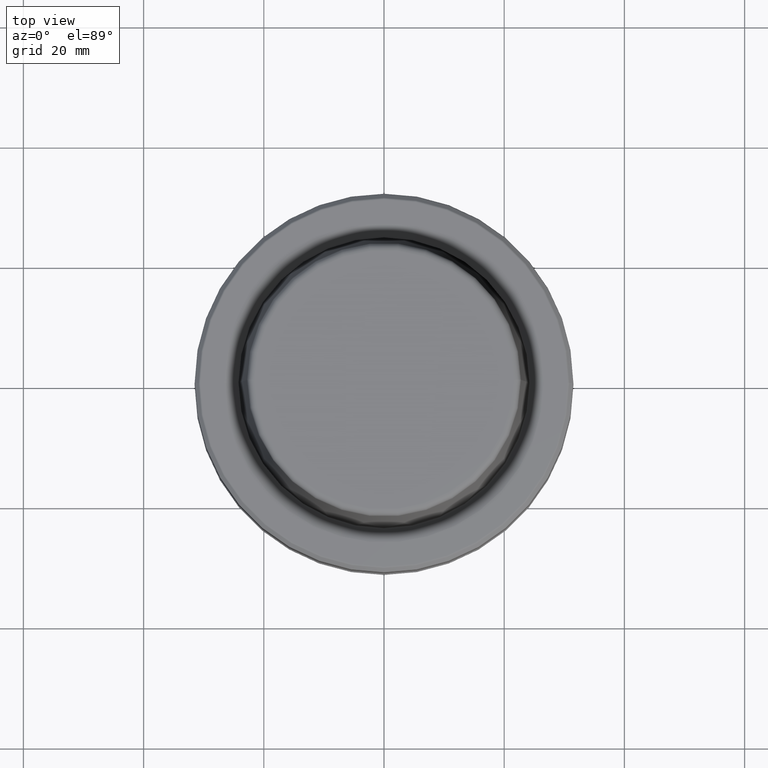
[diagram: clean part render]
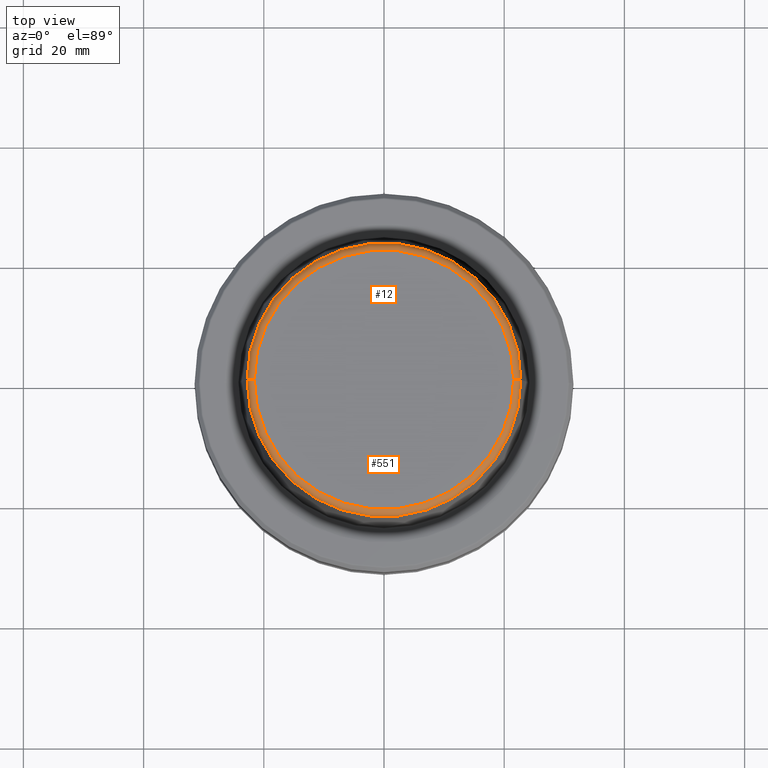
[diagram: same view with one multi-face feature highlighted, each face labeled with its STEP entity id]
A machine part, top view. The highlighted faces form ONE feature: a constant-radius fillet chain: 2 tangent blend faces with common blend radius 1.2 mm. The faces share edges in the B-rep.
Their STEP definitions:
[1] entity #12 (Torus):
#12 = ADVANCED_FACE ( 'NONE', ( #96 ), #1248, .T. ) ;
#21 = CARTESIAN_POINT ( 'NONE',  ( 21.58108272732117100, 0.0000000000000000000, 30.69999999999999200 ) ) ;
#66 = VERTEX_POINT ( 'NONE', #593 ) ;
#88 = DIRECTION ( 'NONE',  ( 1.000000000000000000, 0.0000000000000000000, 0.0000000000000000000 ) ) ;
#96 = FACE_OUTER_BOUND ( 'NONE', #1168, .T. ) ;
#144 = DIRECTION ( 'NONE',  ( 1.000000000000000000, 0.0000000000000000000, 0.0000000000000000000 ) ) ;
#158 = CARTESIAN_POINT ( 'NONE',  ( -22.77957961851797100, 0.0000000000000000000, 30.76004333261571900 ) ) ;
#238 = EDGE_CURVE ( 'NONE', #728, #66, #1014, .T. ) ;
#258 = ORIENTED_EDGE ( 'NONE', *, *, #238, .F. ) ;
#291 = ORIENTED_EDGE ( 'NONE', *, *, #312, .F. ) ;
#302 = AXIS2_PLACEMENT_3D ( 'NONE', #431, #321, #88 ) ;
#312 = EDGE_CURVE ( 'NONE', #1223, #728, #337, .T. ) ;
#315 = ORIENTED_EDGE ( 'NONE', *, *, #795, .T. ) ;
#321 = DIRECTION ( 'NONE',  ( -0.0000000000000000000, -0.0000000000000000000, 1.000000000000000000 ) ) ;
#330 = DIRECTION ( 'NONE',  ( 1.000000000000000000, 0.0000000000000000000, 0.0000000000000000000 ) ) ;
#337 = CIRCLE ( 'NONE', #828, 1.200000000000003100 ) ;
#427 = AXIS2_PLACEMENT_3D ( 'NONE', #1003, #810, #897 ) ;
#431 = CARTESIAN_POINT ( 'NONE',  ( 0.0000000000000000000, 0.0000000000000000000, 30.69999999999999200 ) ) ;
#495 = CARTESIAN_POINT ( 'NONE',  ( 22.77957961851797100, 2.876386432489616700E-015, 30.76004333261571900 ) ) ;
#538 = CARTESIAN_POINT ( 'NONE',  ( 21.58108272732117100, 0.0000000000000000000, 31.89999999999999900 ) ) ;
#547 = DIRECTION ( 'NONE',  ( 0.0000000000000000000, 0.0000000000000000000, -1.000000000000000000 ) ) ;
#593 = CARTESIAN_POINT ( 'NONE',  ( -21.58108272732117100, 2.716307157494421400E-015, 31.89999999999999900 ) ) ;
#667 = EDGE_CURVE ( 'NONE', #1223, #919, #698, .T. ) ;
#698 = CIRCLE ( 'NONE', #901, 22.77957961851797100 ) ;
#728 = VERTEX_POINT ( 'NONE', #538 ) ;
#795 = EDGE_CURVE ( 'NONE', #919, #66, #1140, .T. ) ;
#810 = DIRECTION ( 'NONE',  ( 1.224646799147353200E-016, 1.000000000000000000, 0.0000000000000000000 ) ) ;
#815 = CARTESIAN_POINT ( 'NONE',  ( 0.0000000000000000000, 0.0000000000000000000, 30.76004333261571900 ) ) ;
#827 = DIRECTION ( 'NONE',  ( -0.0000000000000000000, -0.0000000000000000000, 1.000000000000000000 ) ) ;
#828 = AXIS2_PLACEMENT_3D ( 'NONE', #21, #1240, #547 ) ;
#888 = ORIENTED_EDGE ( 'NONE', *, *, #667, .T. ) ;
#897 = DIRECTION ( 'NONE',  ( -1.000000000000000000, 1.224646799147353200E-016, 0.0000000000000000000 ) ) ;
#901 = AXIS2_PLACEMENT_3D ( 'NONE', #815, #827, #330 ) ;
#919 = VERTEX_POINT ( 'NONE', #158 ) ;
#1003 = CARTESIAN_POINT ( 'NONE',  ( -21.58108272732117100, 2.642920388414810300E-015, 30.69999999999999200 ) ) ;
#1014 = CIRCLE ( 'NONE', #1160, 21.58108272732117100 ) ;
#1109 = DIRECTION ( 'NONE',  ( -0.0000000000000000000, -0.0000000000000000000, 1.000000000000000000 ) ) ;
#1120 = CARTESIAN_POINT ( 'NONE',  ( 0.0000000000000000000, 0.0000000000000000000, 31.89999999999999900 ) ) ;
#1140 = CIRCLE ( 'NONE', #427, 1.200000000000003100 ) ;
#1160 = AXIS2_PLACEMENT_3D ( 'NONE', #1120, #1109, #144 ) ;
#1168 = EDGE_LOOP ( 'NONE', ( #888, #315, #258, #291 ) ) ;
#1223 = VERTEX_POINT ( 'NONE', #495 ) ;
#1240 = DIRECTION ( 'NONE',  ( 0.0000000000000000000, -1.000000000000000000, 0.0000000000000000000 ) ) ;
#1248 = TOROIDAL_SURFACE ( 'NONE', #302, 21.58108272732117100, 1.200000000000003100 ) ;
[2] entity #551 (Torus):
#21 = CARTESIAN_POINT ( 'NONE',  ( 21.58108272732117100, 0.0000000000000000000, 30.69999999999999200 ) ) ;
#35 = ORIENTED_EDGE ( 'NONE', *, *, #470, .T. ) ;
#66 = VERTEX_POINT ( 'NONE', #593 ) ;
#81 = ORIENTED_EDGE ( 'NONE', *, *, #795, .F. ) ;
#118 = TOROIDAL_SURFACE ( 'NONE', #122, 21.58108272732117100, 1.200000000000003100 ) ;
#121 = DIRECTION ( 'NONE',  ( -0.0000000000000000000, -0.0000000000000000000, 1.000000000000000000 ) ) ;
#122 = AXIS2_PLACEMENT_3D ( 'NONE', #1071, #1261, #748 ) ;
#158 = CARTESIAN_POINT ( 'NONE',  ( -22.77957961851797100, 0.0000000000000000000, 30.76004333261571900 ) ) ;
#287 = CIRCLE ( 'NONE', #453, 21.58108272732117100 ) ;
#303 = DIRECTION ( 'NONE',  ( -0.0000000000000000000, -0.0000000000000000000, 1.000000000000000000 ) ) ;
#312 = EDGE_CURVE ( 'NONE', #1223, #728, #337, .T. ) ;
#320 = CARTESIAN_POINT ( 'NONE',  ( 0.0000000000000000000, 0.0000000000000000000, 31.89999999999999900 ) ) ;
#337 = CIRCLE ( 'NONE', #828, 1.200000000000003100 ) ;
#426 = CARTESIAN_POINT ( 'NONE',  ( 0.0000000000000000000, 0.0000000000000000000, 30.76004333261571900 ) ) ;
#427 = AXIS2_PLACEMENT_3D ( 'NONE', #1003, #810, #897 ) ;
#453 = AXIS2_PLACEMENT_3D ( 'NONE', #320, #303, #983 ) ;
#469 = CIRCLE ( 'NONE', #735, 22.77957961851797100 ) ;
#470 = EDGE_CURVE ( 'NONE', #919, #1223, #469, .T. ) ;
#495 = CARTESIAN_POINT ( 'NONE',  ( 22.77957961851797100, 2.876386432489616700E-015, 30.76004333261571900 ) ) ;
#538 = CARTESIAN_POINT ( 'NONE',  ( 21.58108272732117100, 0.0000000000000000000, 31.89999999999999900 ) ) ;
#547 = DIRECTION ( 'NONE',  ( 0.0000000000000000000, 0.0000000000000000000, -1.000000000000000000 ) ) ;
#551 = ADVANCED_FACE ( 'NONE', ( #1204 ), #118, .T. ) ;
#593 = CARTESIAN_POINT ( 'NONE',  ( -21.58108272732117100, 2.716307157494421400E-015, 31.89999999999999900 ) ) ;
#597 = EDGE_CURVE ( 'NONE', #66, #728, #287, .T. ) ;
#661 = ORIENTED_EDGE ( 'NONE', *, *, #312, .T. ) ;
#728 = VERTEX_POINT ( 'NONE', #538 ) ;
#735 = AXIS2_PLACEMENT_3D ( 'NONE', #426, #121, #1110 ) ;
#748 = DIRECTION ( 'NONE',  ( 1.000000000000000000, 0.0000000000000000000, 0.0000000000000000000 ) ) ;
#795 = EDGE_CURVE ( 'NONE', #919, #66, #1140, .T. ) ;
#810 = DIRECTION ( 'NONE',  ( 1.224646799147353200E-016, 1.000000000000000000, 0.0000000000000000000 ) ) ;
#828 = AXIS2_PLACEMENT_3D ( 'NONE', #21, #1240, #547 ) ;
#897 = DIRECTION ( 'NONE',  ( -1.000000000000000000, 1.224646799147353200E-016, 0.0000000000000000000 ) ) ;
#919 = VERTEX_POINT ( 'NONE', #158 ) ;
#976 = EDGE_LOOP ( 'NONE', ( #81, #35, #661, #1113 ) ) ;
#983 = DIRECTION ( 'NONE',  ( 1.000000000000000000, 0.0000000000000000000, 0.0000000000000000000 ) ) ;
#1003 = CARTESIAN_POINT ( 'NONE',  ( -21.58108272732117100, 2.642920388414810300E-015, 30.69999999999999200 ) ) ;
#1071 = CARTESIAN_POINT ( 'NONE',  ( 0.0000000000000000000, 0.0000000000000000000, 30.69999999999999200 ) ) ;
#1110 = DIRECTION ( 'NONE',  ( 1.000000000000000000, 0.0000000000000000000, 0.0000000000000000000 ) ) ;
#1113 = ORIENTED_EDGE ( 'NONE', *, *, #597, .F. ) ;
#1140 = CIRCLE ( 'NONE', #427, 1.200000000000003100 ) ;
#1204 = FACE_OUTER_BOUND ( 'NONE', #976, .T. ) ;
#1223 = VERTEX_POINT ( 'NONE', #495 ) ;
#1240 = DIRECTION ( 'NONE',  ( 0.0000000000000000000, -1.000000000000000000, 0.0000000000000000000 ) ) ;
#1261 = DIRECTION ( 'NONE',  ( -0.0000000000000000000, -0.0000000000000000000, 1.000000000000000000 ) ) ;